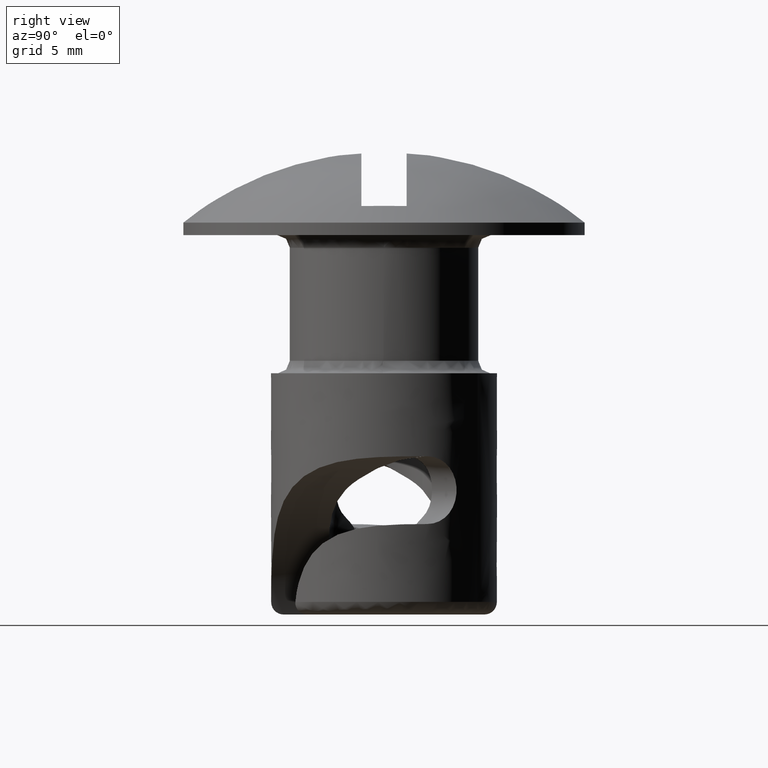
[diagram: clean part render]
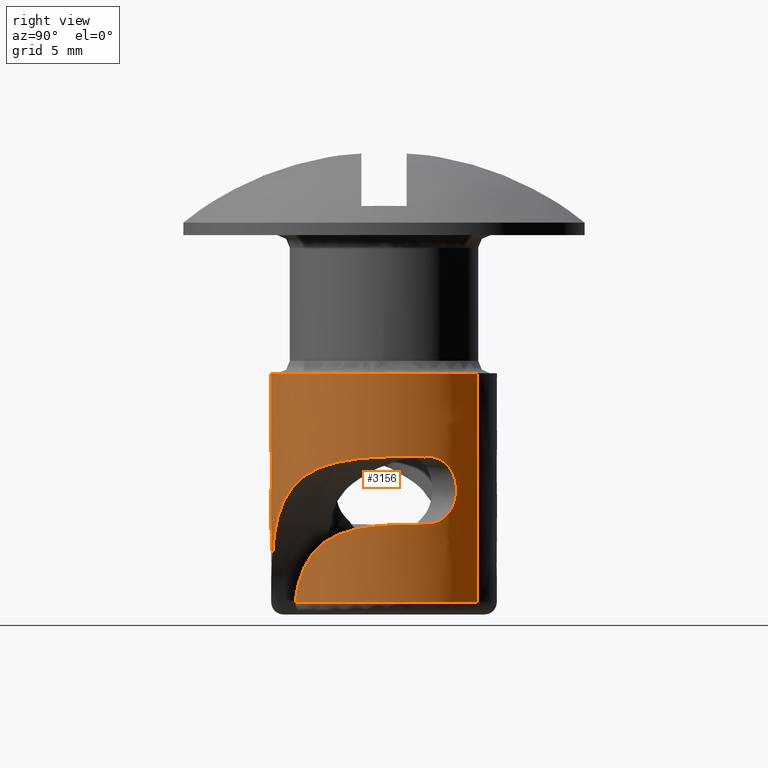
[diagram: same view with one face highlighted and labeled with its STEP entity id]
A machine part, right view. The second image highlights one B-rep face of the part: STEP entity #3156.
In plain terms, the highlighted face is a freeform B-spline surface patch.
Its self-contained STEP definition (entity closure, byte-faithful):
#1195=CARTESIAN_POINT('',(4.157457896922510,1.722075444144590,-11.500000000003380));
#1196=VERTEX_POINT('',#1195);
#1962=CARTESIAN_POINT('',(2.793620478200045,-3.527844189272160,-14.600000000000000));
#1963=VERTEX_POINT('',#1962);
#1964=CARTESIAN_POINT('',(4.157457896922510,1.722075444144590,-11.500000000003380));
#1965=CARTESIAN_POINT('',(4.275098181688673,1.438066672888123,-11.499999999999959));
#1966=CARTESIAN_POINT('',(4.361924483493913,1.146989956070265,-11.502196707037660));
#1967=CARTESIAN_POINT('',(4.447766466480806,0.700261557852445,-11.512184261434690));
#1968=CARTESIAN_POINT('',(4.468922456169007,0.549654526392868,-11.516702741768791));
#1969=CARTESIAN_POINT('',(4.489176712308623,0.321153312413989,-11.526430033919910));
#1970=CARTESIAN_POINT('',(4.494010997276226,0.244350596204309,-11.530183565594580));
#1971=CARTESIAN_POINT('',(4.499717019148100,0.091590420317664,-11.538849087279150));
#1972=CARTESIAN_POINT('',(4.500612110732269,0.015486951103411,-11.543764635117460));
#1973=CARTESIAN_POINT('',(4.495529417417937,-0.363596930584298,-11.571858797357590));
#1974=CARTESIAN_POINT('',(4.461077330837331,-0.662351090224224,-11.605156439175300));
#1975=CARTESIAN_POINT('',(4.381497631020215,-1.028639151629699,-11.673777433173990));
#1976=CARTESIAN_POINT('',(4.363744155630866,-1.101534149716586,-11.688881071736450));
#1977=CARTESIAN_POINT('',(4.324555586477660,-1.246539015939420,-11.722325831879800));
#1978=CARTESIAN_POINT('',(4.303249794364775,-1.318139968697513,-11.740559089148570));
#1979=CARTESIAN_POINT('',(4.234908379046757,-1.528842078239489,-11.799946542410360));
#1980=CARTESIAN_POINT('',(4.183296598549157,-1.664417702988299,-11.845903030273041));
#1981=CARTESIAN_POINT('',(4.069756319001876,-1.925445461548605,-11.953319770208640));
#1982=CARTESIAN_POINT('',(4.007751617169990,-2.051022759708346,-12.014843140233509));
#1983=CARTESIAN_POINT('',(3.875566353943567,-2.291015674750158,-12.156459081937980));
#1984=CARTESIAN_POINT('',(3.807013002156431,-2.402544771638008,-12.234848049261579));
#1985=CARTESIAN_POINT('',(3.668028828132413,-2.609814915717757,-12.407840084303411));
#1986=CARTESIAN_POINT('',(3.597588864847397,-2.705556032544163,-12.502436064278299));
#1987=CARTESIAN_POINT('',(3.492725856697733,-2.837963329816331,-12.657469661747390));
#1988=CARTESIAN_POINT('',(3.457796669562606,-2.880354848847405,-12.711517548968949));
#1989=CARTESIAN_POINT('',(3.389087195505961,-2.960893419995828,-12.823389591074610));
#1990=CARTESIAN_POINT('',(3.355502687369175,-2.998824596684464,-12.880878451875910));
#1991=CARTESIAN_POINT('',(3.257488386847238,-3.106148482613612,-13.057936913123170));
#1992=CARTESIAN_POINT('',(3.195797664420380,-3.169099824794244,-13.182084059214160));
#1993=CARTESIAN_POINT('',(3.110373414126820,-3.252254037978780,-13.377441065783669));
#1994=CARTESIAN_POINT('',(3.083083487362928,-3.278086067399838,-13.444086200004779));
#1995=CARTESIAN_POINT('',(3.031152960945571,-3.326163523142216,-13.580470962078190));
#1996=CARTESIAN_POINT('',(3.006517806341098,-3.348399969459677,-13.650249162426389));
#1997=CARTESIAN_POINT('',(2.937969710786233,-3.409114354168537,-13.861119669289460));
#1998=CARTESIAN_POINT('',(2.898998653970978,-3.442021636667787,-14.004750055243340));
#1999=CARTESIAN_POINT('',(2.835326905395566,-3.494656990686607,-14.297914189005610));
#2000=CARTESIAN_POINT('',(2.810620408912234,-3.514382326441035,-14.447447129772669));
#2001=CARTESIAN_POINT('',(2.793620478200045,-3.527844189272160,-14.600000000000000));
#2002=B_SPLINE_CURVE_WITH_KNOTS('',3,(#1964,#1965,#1966,#1967,#1968,#1969,#1970,#1971,#1972,#1973,#1974,#1975,#1976,#1977,#1978,#1979,#1980,#1981,#1982,#1983,#1984,#1985,#1986,#1987,#1988,#1989,#1990,#1991,#1992,#1993,#1994,#1995,#1996,#1997,#1998,#1999,#2000,#2001),.UNSPECIFIED.,.F.,.U.,(4,2,2,2,2,2,2,2,2,2,2,2,2,2,2,2,2,2,4),(0.0,0.125000000000000,0.187500000000001,0.218750000000001,0.250000000000001,0.375000000000001,0.406250000000002,0.437500000000002,0.500000000000002,0.562500000000003,0.625000000000003,0.687500000000003,0.718750000000003,0.750000000000004,0.812500000000003,0.843750000000003,0.875000000000003,0.937500000000001,1.0),.UNSPECIFIED.);
#2003=EDGE_CURVE('',#1196,#1963,#2002,.T.);
#2727=CARTESIAN_POINT('',(4.157457896922624,1.722075444141715,-8.800000000000001));
#2728=VERTEX_POINT('',#2727);
#2729=CARTESIAN_POINT('',(4.157457896922624,1.722075444141715,-8.800000000000001));
#2730=CARTESIAN_POINT('',(4.123401459996471,1.804294956137143,-8.800000000001726));
#2731=CARTESIAN_POINT('',(4.087290504576600,1.884583069167999,-8.808714546637539));
#2732=CARTESIAN_POINT('',(4.030257859354573,2.002228968040429,-8.834740188461922));
#2733=CARTESIAN_POINT('',(4.010658001904334,2.041188575608751,-8.845667988610705));
#2734=CARTESIAN_POINT('',(3.971145742021225,2.117033279157921,-8.871634054946942));
#2735=CARTESIAN_POINT('',(3.951279954426110,2.153848451354620,-8.886615366361657));
#2736=CARTESIAN_POINT('',(3.891511790761936,2.261159370979228,-8.937368411364025));
#2737=CARTESIAN_POINT('',(3.851426420933469,2.328544435300424,-8.978890280631674));
#2738=CARTESIAN_POINT('',(3.771838795190309,2.455368967412734,-9.077762490536491));
#2739=CARTESIAN_POINT('',(3.733605235515637,2.512807769065090,-9.133549420042943));
#2740=CARTESIAN_POINT('',(3.679459656017875,2.590864599797345,-9.226392755964511));
#2741=CARTESIAN_POINT('',(3.661946919731239,2.615525440092322,-9.258882455107214));
#2742=CARTESIAN_POINT('',(3.628187451846989,2.662157843735443,-9.327039968341866));
#2743=CARTESIAN_POINT('',(3.611921877676159,2.684149682621980,-9.362792887158042));
#2744=CARTESIAN_POINT('',(3.566341216778900,2.744770846913597,-9.472593628786942));
#2745=CARTESIAN_POINT('',(3.539841083443306,2.778627113771349,-9.549855794583520));
#2746=CARTESIAN_POINT('',(3.506855420213442,2.819978004364518,-9.671977132239393));
#2747=CARTESIAN_POINT('',(3.496966121846969,2.832209789750282,-9.713867464279643));
#2748=CARTESIAN_POINT('',(3.479811703567724,2.853260390889646,-9.799249958535492));
#2749=CARTESIAN_POINT('',(3.472624789376681,2.861985205568439,-9.842309056779776));
#2750=CARTESIAN_POINT('',(3.455279207913718,2.882945468438414,-9.972571097405094));
#2751=CARTESIAN_POINT('',(3.449311258840027,2.890026270058278,-10.060881766882421));
#2752=CARTESIAN_POINT('',(3.449367805886732,2.889958778548010,-10.240381647982151));
#2753=CARTESIAN_POINT('',(3.455386353959824,2.882817133482880,-10.328521710486440));
#2754=CARTESIAN_POINT('',(3.472744309950967,2.861840199558717,-10.458442270022839));
#2755=CARTESIAN_POINT('',(3.479924867414503,2.853122213277918,-10.501364853570690));
#2756=CARTESIAN_POINT('',(3.497036506004811,2.832122723757112,-10.586430738697810));
#2757=CARTESIAN_POINT('',(3.506983863702148,2.819818657635622,-10.628551096058860));
#2758=CARTESIAN_POINT('',(3.540083509797152,2.778319829020908,-10.750935131977521));
#2759=CARTESIAN_POINT('',(3.566649090487903,2.744371594232226,-10.828245356358190));
#2760=CARTESIAN_POINT('',(3.612262496040411,2.683691479143724,-10.937978174259090));
#2761=CARTESIAN_POINT('',(3.628528183876298,2.661693749289423,-10.973687951103230));
#2762=CARTESIAN_POINT('',(3.662318517488908,2.615005444095234,-11.041826906376370));
#2763=CARTESIAN_POINT('',(3.679841002204891,2.590323093153804,-11.074295799271489));
#2764=CARTESIAN_POINT('',(3.733996294064055,2.512227256728226,-11.167050684420261));
#2765=CARTESIAN_POINT('',(3.772202165888006,2.454808696088945,-11.222733643908009));
#2766=CARTESIAN_POINT('',(3.851703578330209,2.328083860043486,-11.321408955285140));
#2767=CARTESIAN_POINT('',(3.891851856430214,2.260567204660088,-11.362950701907289));
#2768=CARTESIAN_POINT('',(3.951471010583169,2.153496132419666,-11.413531562988030));
#2769=CARTESIAN_POINT('',(3.971268784820126,2.116798738653433,-11.428449210646050));
#2770=CARTESIAN_POINT('',(4.010609168006017,2.041280667314513,-11.454297508753200));
#2771=CARTESIAN_POINT('',(4.030255177054489,2.002237209090548,-11.465262249072760));
#2772=CARTESIAN_POINT('',(4.087455242462470,1.884237823452616,-11.491353289626520));
#2773=CARTESIAN_POINT('',(4.123534469256814,1.803973843382646,-11.500000000006070));
#2774=CARTESIAN_POINT('',(4.157457896922510,1.722075444144590,-11.500000000003380));
#2775=B_SPLINE_CURVE_WITH_KNOTS('',3,(#2729,#2730,#2731,#2732,#2733,#2734,#2735,#2736,#2737,#2738,#2739,#2740,#2741,#2742,#2743,#2744,#2745,#2746,#2747,#2748,#2749,#2750,#2751,#2752,#2753,#2754,#2755,#2756,#2757,#2758,#2759,#2760,#2761,#2762,#2763,#2764,#2765,#2766,#2767,#2768,#2769,#2770,#2771,#2772,#2773,#2774),.UNSPECIFIED.,.F.,.U.,(4,2,2,2,2,2,2,2,2,2,2,2,2,2,2,2,2,2,2,2,2,2,4),(0.0,0.062500000000000,0.093750000000000,0.125000000000000,0.187500000000001,0.250000000000001,0.281250000000001,0.312500000000001,0.375000000000002,0.406250000000001,0.437500000000001,0.500000000000001,0.562500000000000,0.593750000000001,0.625000000000001,0.687500000000001,0.718750000000001,0.750000000000000,0.812500000000000,0.875000000000000,0.906250000000000,0.937500000000000,1.0),.UNSPECIFIED.);
#2776=EDGE_CURVE('',#2728,#1196,#2775,.T.);
#2910=CARTESIAN_POINT('',(2.524506964124516,3.725166383946737,-14.600000000000000));
#2911=VERTEX_POINT('',#2910);
#2925=CARTESIAN_POINT('',(2.793620478200046,-3.527844189272160,-14.600000000000000));
#2926=CARTESIAN_POINT('',(5.377604140637787,-1.481645636435922,-14.600000000000005));
#2927=CARTESIAN_POINT('',(4.206240262440706,1.599231957729316,-14.600000000000000));
#2928=CARTESIAN_POINT('',(3.701116216030954,2.927790389335699,-14.600000000000003));
#2929=CARTESIAN_POINT('',(2.524506964124517,3.725166383946738,-14.600000000000005));
#2937=(BOUNDED_CURVE()B_SPLINE_CURVE(2,(#2925,#2926,#2927,#2928,#2929),.UNSPECIFIED.,.F.,.U.)B_SPLINE_CURVE_WITH_KNOTS((3,2,3),(0.0,0.500000000000000,0.742240525514748),.UNSPECIFIED.)CURVE()GEOMETRIC_REPRESENTATION_ITEM()RATIONAL_B_SPLINE_CURVE((1.0,0.806743151623619,1.0,0.906370718979963,0.903464662911373))REPRESENTATION_ITEM(''));
#2938=EDGE_CURVE('',#1963,#2911,#2937,.T.);
#2973=CARTESIAN_POINT('',(4.500000000000000,0.0,-5.500000000000000));
#2974=VERTEX_POINT('',#2973);
#2975=CARTESIAN_POINT('',(2.524505848559633,3.725167139953121,-5.500000000000000));
#2976=VERTEX_POINT('',#2975);
#2977=CARTESIAN_POINT('',(4.500000000000000,0.0,-5.500000000000000));
#2978=CARTESIAN_POINT('',(4.499999999999949,2.386395924665111,-5.500000000000000));
#2979=CARTESIAN_POINT('',(2.524505848559633,3.725167139953121,-5.500000000000001));
#2987=(BOUNDED_CURVE()B_SPLINE_CURVE(2,(#2977,#2978,#2979),.UNSPECIFIED.,.F.,.U.)B_SPLINE_CURVE_WITH_KNOTS((3,3),(0.0,0.153725393184552),.UNSPECIFIED.)CURVE()GEOMETRIC_REPRESENTATION_ITEM()RATIONAL_B_SPLINE_CURVE((1.0,0.819899499107251,0.861287160714284))REPRESENTATION_ITEM(''));
#2988=EDGE_CURVE('',#2974,#2976,#2987,.T.);
#3007=CARTESIAN_POINT('',(-2.524505848559632,-3.725167139953121,-5.500000000000000));
#3008=VERTEX_POINT('',#3007);
#3022=CARTESIAN_POINT('',(-2.524505848559633,-3.725167139953121,-5.500000000000001));
#3023=CARTESIAN_POINT('',(-1.381160543636388,-4.499999999999857,-5.499999999999999));
#3024=CARTESIAN_POINT('',(8.155131E-014,-4.499999999999882,-5.500000000000000));
#3025=CARTESIAN_POINT('',(4.500000000000028,-4.499999999999959,-5.500000000000000));
#3026=CARTESIAN_POINT('',(4.500000000000000,0.0,-5.500000000000000));
#3034=(BOUNDED_CURVE()B_SPLINE_CURVE(2,(#3022,#3023,#3024,#3025,#3026),.UNSPECIFIED.,.F.,.U.)B_SPLINE_CURVE_WITH_KNOTS((3,2,3),(0.653725393184552,0.750000000000000,1.0),.UNSPECIFIED.)CURVE()GEOMETRIC_REPRESENTATION_ITEM()RATIONAL_B_SPLINE_CURVE((0.861287160714284,0.887207282079296,1.0,0.707106781186547,1.0))REPRESENTATION_ITEM(''));
#3035=EDGE_CURVE('',#3008,#2974,#3034,.T.);
#3046=CARTESIAN_POINT('',(-2.524506923498840,-3.725166411478340,-14.827500000000001));
#3047=CARTESIAN_POINT('',(1.200659487979499,-6.249673334977181,-14.827500000000008));
#3048=CARTESIAN_POINT('',(3.725166411478340,-2.524506923498840,-14.827500000000001));
#3049=CARTESIAN_POINT('',(6.249673334977181,1.200659487979499,-14.827500000000008));
#3050=CARTESIAN_POINT('',(2.524506923498840,3.725166411478340,-14.827500000000001));
#3051=CARTESIAN_POINT('',(-2.524506923498840,-3.725166411478340,-5.266812499999997));
#3052=CARTESIAN_POINT('',(1.200659487979499,-6.249673334977181,-5.266812499999996));
#3053=CARTESIAN_POINT('',(3.725166411478340,-2.524506923498840,-5.266812499999997));
#3054=CARTESIAN_POINT('',(6.249673334977181,1.200659487979499,-5.266812499999996));
#3055=CARTESIAN_POINT('',(2.524506923498840,3.725166411478340,-5.266812499999997));
#3063=(BOUNDED_SURFACE()B_SPLINE_SURFACE(2,1,((#3046,#3051),(#3047,#3052),(#3048,#3053),(#3049,#3054),(#3050,#3055)),.UNSPECIFIED.,.F.,.F.,.U.)B_SPLINE_SURFACE_WITH_KNOTS((3,2,3),(2,2),(0.0,7.455844122715709,14.911688245431421),(0.0,9.560687500000006),.UNSPECIFIED.)GEOMETRIC_REPRESENTATION_ITEM()RATIONAL_B_SPLINE_SURFACE(((1.0,1.0),(0.707106781186548,0.707106781186548),(1.0,1.0),(0.707106781186548,0.707106781186548),(1.0,1.0)))REPRESENTATION_ITEM('')SURFACE());
#3064=ORIENTED_EDGE('',*,*,#3035,.F.);
#3065=CARTESIAN_POINT('',(-2.524506964124516,-3.725166383946737,-14.600000000000000));
#3066=VERTEX_POINT('',#3065);
#3067=CARTESIAN_POINT('',(-2.524506964124516,-3.725166383946737,-14.600000000000000));
#3068=CARTESIAN_POINT('',(-2.524505848559632,-3.725167139953121,-5.500000000000000));
#3069=QUASI_UNIFORM_CURVE('',1,(#3067,#3068),.UNSPECIFIED.,.F.,.U.);
#3070=EDGE_CURVE('',#3066,#3008,#3069,.T.);
#3071=ORIENTED_EDGE('',*,*,#3070,.F.);
#3072=CARTESIAN_POINT('',(0.255835677203764,-4.492721681371959,-14.600000000000000));
#3073=VERTEX_POINT('',#3072);
#3074=CARTESIAN_POINT('',(-2.524506964124518,-3.725166383946737,-14.600000000000007));
#3075=CARTESIAN_POINT('',(-1.264178414866267,-4.579278085748483,-14.600000000000003));
#3076=CARTESIAN_POINT('',(0.255835677203766,-4.492721681371959,-14.600000000000000));
#3084=(BOUNDED_CURVE()B_SPLINE_CURVE(2,(#3074,#3075,#3076),.UNSPECIFIED.,.F.,.U.)B_SPLINE_CURVE_WITH_KNOTS((3,3),(0.742240525514748,1.0),.UNSPECIFIED.)CURVE()GEOMETRIC_REPRESENTATION_ITEM()RATIONAL_B_SPLINE_CURVE((0.903464662911373,0.900372432643656,1.0))REPRESENTATION_ITEM(''));
#3085=EDGE_CURVE('',#3066,#3073,#3084,.T.);
#3086=ORIENTED_EDGE('',*,*,#3085,.T.);
#3087=CARTESIAN_POINT('',(4.157457896922624,1.722075444141715,-8.800000000000001));
#3088=CARTESIAN_POINT('',(4.251216062589120,1.495723208775260,-8.799999999999979));
#3089=CARTESIAN_POINT('',(4.325326649337720,1.264872823841523,-8.800851007371996));
#3090=CARTESIAN_POINT('',(4.435879545861407,0.794560594651052,-8.805263631726458));
#3091=CARTESIAN_POINT('',(4.472319717629077,0.555098144338448,-8.808815179451765));
#3092=CARTESIAN_POINT('',(4.493454160107758,0.250211533345091,-8.817035267498094));
#3093=CARTESIAN_POINT('',(4.496441321122611,0.189018176964220,-8.818874299022909));
#3094=CARTESIAN_POINT('',(4.499910608109136,0.067208217864782,-8.822978211693446));
#3095=CARTESIAN_POINT('',(4.500403502731599,0.006453744390379,-8.825246614146852));
#3096=CARTESIAN_POINT('',(4.498215553891774,-0.175357302639424,-8.832804062756591));
#3097=CARTESIAN_POINT('',(4.491873542459526,-0.295962363728423,-8.838841575488008));
#3098=CARTESIAN_POINT('',(4.458457111095235,-0.655931976116248,-8.860903334236337));
#3099=CARTESIAN_POINT('',(4.417075366099178,-0.893465991198028,-8.880791745068544));
#3100=CARTESIAN_POINT('',(4.341053789761546,-1.186983260664664,-8.916362631454415));
#3101=CARTESIAN_POINT('',(4.324584262166028,-1.245646377100500,-8.924039652869228));
#3102=CARTESIAN_POINT('',(4.289514754789506,-1.361516472834905,-8.940450218961642));
#3103=CARTESIAN_POINT('',(4.270895997320138,-1.418818600312679,-8.949192645497510));
#3104=CARTESIAN_POINT('',(4.211885803206989,-1.588840250880763,-8.977161782224259));
#3105=CARTESIAN_POINT('',(4.168344113026937,-1.699677316651606,-8.998127982068445));
#3106=CARTESIAN_POINT('',(4.025748507840634,-2.024680580488226,-9.069105554553399));
#3107=CARTESIAN_POINT('',(3.914762934088972,-2.231371467004854,-9.127135552052934));
#3108=CARTESIAN_POINT('',(3.757492278960908,-2.476822761001668,-9.217504310707682));
#3109=CARTESIAN_POINT('',(3.725014745675753,-2.525393794597043,-9.236531205186914));
#3110=CARTESIAN_POINT('',(3.658843130353403,-2.620346469602205,-9.276134356132639));
#3111=CARTESIAN_POINT('',(3.557700555921008,-2.759622781892145,-9.337890330806918));
#3112=CARTESIAN_POINT('',(3.451343327477512,-2.889705878700200,-9.406908769455356));
#3113=CARTESIAN_POINT('',(3.232720566505978,-3.138184356752147,-9.555216353308667));
#3114=CARTESIAN_POINT('',(3.079107008875318,-3.288279636576625,-9.667757914625645));
#3115=CARTESIAN_POINT('',(2.840569715289832,-3.491716544578757,-9.859752796447650));
#3116=CARTESIAN_POINT('',(2.760672080360959,-3.555073625901769,-9.926847287525817));
#3117=CARTESIAN_POINT('',(2.601177665697744,-3.673381762401248,-10.066855390058880));
#3118=CARTESIAN_POINT('',(2.521503282585337,-3.728396649026551,-10.139830359444300));
#3119=CARTESIAN_POINT('',(2.362845596677823,-3.830911257497530,-10.291761895372220));
#3120=CARTESIAN_POINT('',(2.283861416996887,-3.878409838195910,-10.370718337967229));
#3121=CARTESIAN_POINT('',(2.166289854720021,-3.944516412261712,-10.493699247509520));
#3122=CARTESIAN_POINT('',(2.127249978678467,-3.965694375120991,-10.535450919425660));
#3123=CARTESIAN_POINT('',(2.049535418081855,-4.006410977256562,-10.620484512940260));
#3124=CARTESIAN_POINT('',(2.010827586600611,-4.025963213338089,-10.663808175120840));
#3125=CARTESIAN_POINT('',(1.819772981142597,-4.119143642564993,-10.882640845504660));
#3126=CARTESIAN_POINT('',(1.673753559475716,-4.179732532768504,-11.065957719102411));
#3127=CARTESIAN_POINT('',(1.397361509913811,-4.280069606204146,-11.448712768605640));
#3128=CARTESIAN_POINT('',(1.266977319073122,-4.319782842846703,-11.648151649386920));
#3129=CARTESIAN_POINT('',(1.084900248822296,-4.367714537856685,-11.959629074385600));
#3130=CARTESIAN_POINT('',(1.026387320631123,-4.381758620768721,-12.065657688789770));
#3131=CARTESIAN_POINT('',(0.914547893507097,-4.406459087874878,-12.281316719575090));
#3132=CARTESIAN_POINT('',(0.861559024800015,-4.417046626034509,-12.390278203963881));
#3133=CARTESIAN_POINT('',(0.711535639765578,-4.444553569533535,-12.720557140326550));
#3134=CARTESIAN_POINT('',(0.623420161747091,-4.457256620977299,-12.945258420271839));
#3135=CARTESIAN_POINT('',(0.472377638950449,-4.475784696512829,-13.403950299390811));
#3136=CARTESIAN_POINT('',(0.409448335685718,-4.481606004893582,-13.637940295660609));
#3137=CARTESIAN_POINT('',(0.335586674812330,-4.487537371918130,-13.996348484905189));
#3138=CARTESIAN_POINT('',(0.314469430281037,-4.489032563460882,-14.116787613999000));
#3139=CARTESIAN_POINT('',(0.279652654086169,-4.491335967332663,-14.357863999543760));
#3140=CARTESIAN_POINT('',(0.265898739107560,-4.492148645595545,-14.478754440721470));
#3141=CARTESIAN_POINT('',(0.255835677203764,-4.492721681371959,-14.600000000000000));
#3142=B_SPLINE_CURVE_WITH_KNOTS('',3,(#3087,#3088,#3089,#3090,#3091,#3092,#3093,#3094,#3095,#3096,#3097,#3098,#3099,#3100,#3101,#3102,#3103,#3104,#3105,#3106,#3107,#3108,#3109,#3110,#3111,#3112,#3113,#3114,#3115,#3116,#3117,#3118,#3119,#3120,#3121,#3122,#3123,#3124,#3125,#3126,#3127,#3128,#3129,#3130,#3131,#3132,#3133,#3134,#3135,#3136,#3137,#3138,#3139,#3140,#3141),.UNSPECIFIED.,.F.,.U.,(4,2,2,2,2,2,2,2,2,2,2,2,1,2,2,2,2,2,2,2,2,2,2,2,2,2,2,4),(0.0,0.062500000000000,0.125000000000001,0.140625000000001,0.156250000000001,0.187500000000001,0.250000000000001,0.265625000000001,0.281250000000001,0.312500000000002,0.375000000000002,0.390625000000002,0.406250000000002,0.437500000000002,0.500000000000002,0.531250000000002,0.562500000000002,0.593750000000002,0.609375000000002,0.625000000000002,0.687500000000002,0.750000000000001,0.781250000000001,0.812500000000001,0.875000000000001,0.937500000000000,0.968750000000000,1.0),.UNSPECIFIED.);
#3143=EDGE_CURVE('',#2728,#3073,#3142,.T.);
#3144=ORIENTED_EDGE('',*,*,#3143,.F.);
#3145=ORIENTED_EDGE('',*,*,#2776,.T.);
#3146=ORIENTED_EDGE('',*,*,#2003,.T.);
#3147=ORIENTED_EDGE('',*,*,#2938,.T.);
#3148=CARTESIAN_POINT('',(2.524506964124516,3.725166383946737,-14.600000000000000));
#3149=CARTESIAN_POINT('',(2.524505848559633,3.725167139953121,-5.500000000000000));
#3150=QUASI_UNIFORM_CURVE('',1,(#3148,#3149),.UNSPECIFIED.,.F.,.U.);
#3151=EDGE_CURVE('',#2911,#2976,#3150,.T.);
#3152=ORIENTED_EDGE('',*,*,#3151,.T.);
#3153=ORIENTED_EDGE('',*,*,#2988,.F.);
#3154=EDGE_LOOP('',(#3064,#3071,#3086,#3144,#3145,#3146,#3147,#3152,#3153));
#3155=FACE_OUTER_BOUND('',#3154,.T.);
#3156=ADVANCED_FACE('',(#3155),#3063,.T.);